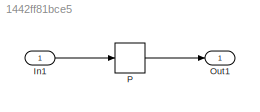
MODEL slx_1442ff81bce5
KIND model
CONFIG AbsTol = auto
CONFIG EnableMultiTasking = off
CONFIG FixedStep = auto
CONFIG MaxStep = auto
CONFIG MinStep = auto
CONFIG RelTol = 1e-3
CONFIG SampleTimeConstraint = Unconstrained
CONFIG Solver = FixedStepDiscrete
CONFIG SolverName = FixedStepDiscrete
CONFIG StartTime = 0.0
CONFIG StopTime = 10.0
BLOCK [Inport] In1
  IconDisplay = Port number
BLOCK [Outport] Out1
  IconDisplay = Port number
BLOCK [DiscreteFilter] P
  Denominator = [1 0.5 2 1.5]
  InputPortMap = u0
  LockScale = on
  Numerator = [0.5 .7]
  Ports = [1, 1]
  RndMeth = Nearest
LINE In1:1 -> P:1
LINE P:1 -> Out1:1
